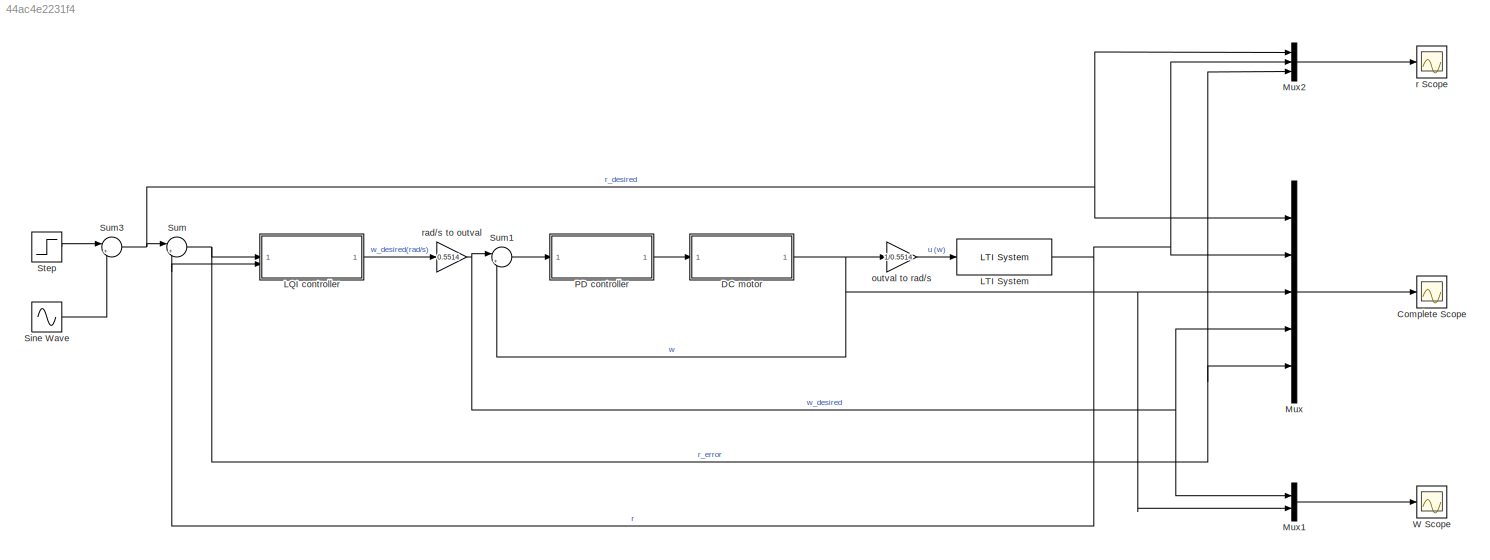
MODEL slx_44ac4e2231f4
KIND model
CONFIG AbsTol = auto
CONFIG EnableMultiTasking = off
CONFIG FixedStep = auto
CONFIG MaxStep = auto
CONFIG MinStep = auto
CONFIG RelTol = 1e-3
CONFIG SampleTimeConstraint = Unconstrained
CONFIG SolverName = VariableStepAuto
CONFIG StartTime = 0.0
CONFIG StopTime = 50
BLOCK [Scope] Complete Scope
  Floating = off
  NumInputPorts = 1
  ScopeSpecificationString = Simulink.scopes.TimeScopeBlockCfg('CurrentConfiguration', extmgr.ConfigurationSet(extmgr.Configuration('Core','General UI',true),extmgr.Configuration('Core','Source UI',true),extmgr.Configuration('Sources','WiredSimulink',true),extmgr.Configuration('Visuals','Time Domain',true,'SerializedDisplays',{struct('MinYLimReal','-1.86026','MaxYLimReal','2.03652','YLabelReal','','MinYLimMag','0.00000','MaxY...<+1606ch>
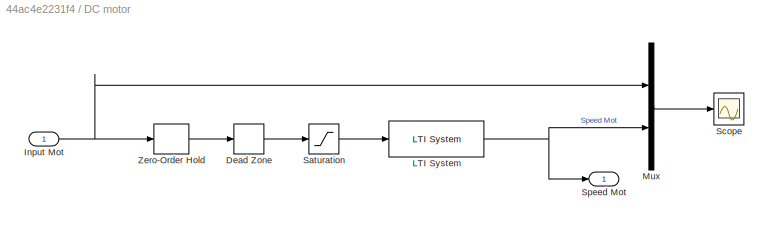
BLOCK [SubSystem] DC motor
BLOCK [DeadZone] DC motor/Dead Zone
  LowerValue = -1.75
  UpperValue = 1.7
BLOCK [Inport] DC motor/Input Mot
BLOCK [Reference] DC motor/LTI System  REF=cstblocks/LTI System
  SourceBlock = cstblocks/LTI System
  SourceType = LTI Block
BLOCK [Mux] DC motor/Mux
  DisplayOption = bar
  Inputs = 2
BLOCK [Saturate] DC motor/Saturation
  LowerLimit = -8.42
  UpperLimit = 8.30
BLOCK [Scope] DC motor/Scope
  Floating = off
  NumInputPorts = 1
  ScopeSpecificationString = Simulink.scopes.TimeScopeBlockCfg('CurrentConfiguration', extmgr.ConfigurationSet(extmgr.Configuration('Core','General UI',true),extmgr.Configuration('Core','Source UI',true),extmgr.Configuration('Sources','WiredSimulink',true,'DataLoggingVariableName','ScopeData1'),extmgr.Configuration('Visuals','Time Domain',true,'SerializedDisplays',{struct('MinYLimReal','-30407.36833','MaxYLimReal','20127.3813...<+1654ch>
BLOCK [Outport] DC motor/Speed Mot
BLOCK [ZeroOrderHold] DC motor/Zero-Order Hold
  SampleTime = 0.01
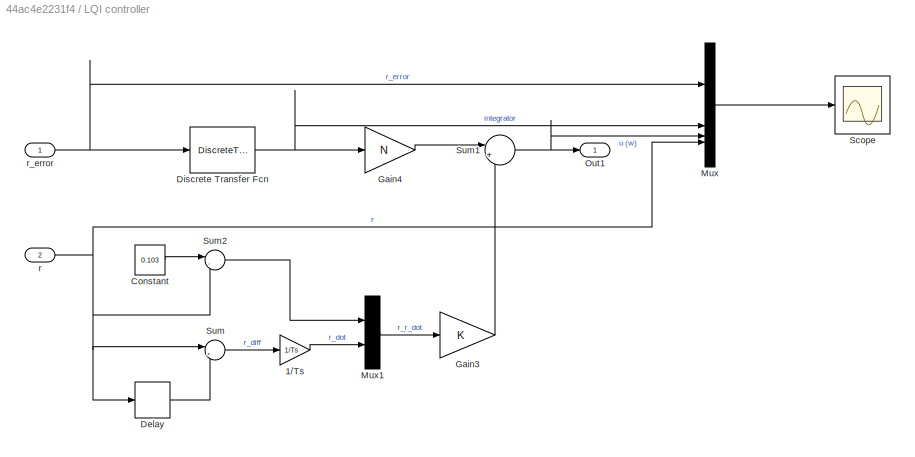
BLOCK [SubSystem] LQI controller
BLOCK [Gain] LQI controller/1//Ts
  Gain = 1/Ts
BLOCK [Constant] LQI controller/Constant
  Value = 0.103
BLOCK [Delay] LQI controller/Delay
  DelayLength = 1
  InputPortMap = u0
  InputProcessing = Columns as channels (frame based)
BLOCK [DiscreteTransferFcn] LQI controller/Discrete Transfer Fcn
  CloseFcn = dspblkCoreblockFVToolHelper(gcbh,'close');
  CopyFcn = dspblkCoreblockFVToolHelper(gcbh,'copy');
  DeleteFcn = dspblkCoreblockFVToolHelper(gcbh,'close');
  Denominator = [1 -1]
  InputPortMap = u0
  LoadFcn = dspblkCoreblockFVToolHelper(gcbh,'load');
  ModelCloseFcn = dspblkCoreblockFVToolHelper(gcbh,'close');
  PostSaveFcn = dspblkCoreblockFVToolHelper(gcbh,'postsave');
  PreSaveFcn = dspblkCoreblockFVToolHelper(gcbh,'presave');
BLOCK [Gain] LQI controller/Gain3
  Gain = K
  Multiplication = Matrix(K*u)
BLOCK [Gain] LQI controller/Gain4
  Gain = N
  Multiplication = Matrix(K*u)
BLOCK [Mux] LQI controller/Mux
  DisplayOption = bar
BLOCK [Mux] LQI controller/Mux1
  DisplayOption = bar
  Inputs = 2
BLOCK [Outport] LQI controller/Out1
BLOCK [Scope] LQI controller/Scope
  Floating = off
  NumInputPorts = 1
  ScopeSpecificationString = Simulink.scopes.TimeScopeBlockCfg('CurrentConfiguration', extmgr.ConfigurationSet(extmgr.Configuration('Core','General UI',true),extmgr.Configuration('Core','Source UI',true),extmgr.Configuration('Sources','WiredSimulink',true,'DataLoggingVariableName','ScopeData2'),extmgr.Configuration('Visuals','Time Domain',true,'SerializedDisplays',{struct('MinYLimReal','-0.32757','MaxYLimReal','0.31137','YLab...<+1665ch>
BLOCK [Sum] LQI controller/Sum
  Inputs = |+-
BLOCK [Sum] LQI controller/Sum1
  Inputs = |++
BLOCK [Sum] LQI controller/Sum2
  Inputs = |-+
BLOCK [Inport] LQI controller/r
  Port = 2
BLOCK [Inport] LQI controller/r_error
BLOCK [Reference] LTI System  REF=cstblocks/LTI System
  SourceBlock = cstblocks/LTI System
  SourceType = LTI Block
BLOCK [Mux] Mux
  DisplayOption = bar
  Inputs = 5
BLOCK [Mux] Mux1
  DisplayOption = bar
  Inputs = 2
BLOCK [Mux] Mux2
  DisplayOption = bar
  Inputs = 3
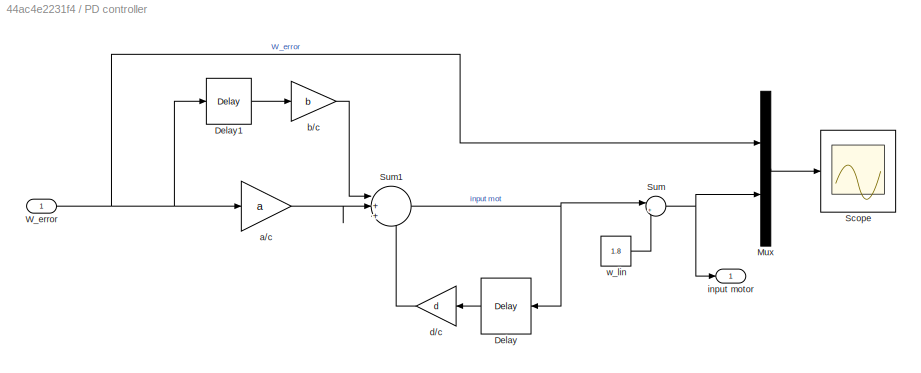
BLOCK [SubSystem] PD controller
BLOCK [Delay] PD controller/Delay
  DelayLength = 1
  InputPortMap = u0
  InputProcessing = Columns as channels (frame based)
  NameLocation = top
BLOCK [Delay] PD controller/Delay1
  DelayLength = 1
  InputPortMap = u0
  InputProcessing = Columns as channels (frame based)
BLOCK [Mux] PD controller/Mux
  DisplayOption = bar
  Inputs = 2
BLOCK [Scope] PD controller/Scope
  Floating = off
  NumInputPorts = 1
  ScopeSpecificationString = Simulink.scopes.TimeScopeBlockCfg('CurrentConfiguration', extmgr.ConfigurationSet(extmgr.Configuration('Core','General UI',true),extmgr.Configuration('Core','Source UI',true),extmgr.Configuration('Sources','WiredSimulink',true,'DataLoggingVariableName','ScopeData1'),extmgr.Configuration('Visuals','Time Domain',true,'SerializedDisplays',{struct('MinYLimReal','-256.6782','MaxYLimReal','296.03219','Y...<+1523ch>
BLOCK [Sum] PD controller/Sum
  Inputs = |++
BLOCK [Sum] PD controller/Sum1
  Inputs = |++-
BLOCK [Inport] PD controller/W_error
BLOCK [Gain] PD controller/a//c
  Gain = a
BLOCK [Gain] PD controller/b//c
  Gain = b
BLOCK [Gain] PD controller/d//c
  Gain = d
  NameLocation = top
BLOCK [Outport] PD controller/input motor
BLOCK [Constant] PD controller/w_lin
  Value = 1.8
BLOCK [Sin] Sine Wave
  Amplitude = 0
  Frequency = 0.5
  SampleTime = 0
BLOCK [Step] Step
  After = 0.13
  Before = 0.1
  SampleTime = 0
  Time = 20
BLOCK [Sum] Sum
  Inputs = |+-
BLOCK [Sum] Sum1
  Inputs = |+-
BLOCK [Sum] Sum3
  Inputs = |++
BLOCK [Scope] W Scope
  Floating = off
  NumInputPorts = 1
  ScopeSpecificationString = Simulink.scopes.TimeScopeBlockCfg('CurrentConfiguration', extmgr.ConfigurationSet(extmgr.Configuration('Core','General UI',true),extmgr.Configuration('Core','Source UI',true),extmgr.Configuration('Sources','WiredSimulink',true,'DataLoggingVariableName','ScopeData1'),extmgr.Configuration('Visuals','Time Domain',true,'SerializedDisplays',{struct('MinYLimReal','-3.95168','MaxYLimReal','1.98958','YLab...<+1534ch>
BLOCK [Gain] outval to rad//s
  Gain = 1/0.5514
BLOCK [Scope] r Scope
  Floating = off
  NumInputPorts = 1
  ScopeSpecificationString = Simulink.scopes.TimeScopeBlockCfg('CurrentConfiguration', extmgr.ConfigurationSet(extmgr.Configuration('Core','General UI',true),extmgr.Configuration('Core','Source UI',true),extmgr.Configuration('Sources','WiredSimulink',true,'DataLoggingVariableName','ScopeData2'),extmgr.Configuration('Visuals','Time Domain',true,'SerializedDisplays',{struct('MinYLimReal','-0.13599','MaxYLimReal','0.23599','YLab...<+1496ch>
BLOCK [Gain] rad//s to outval
  Gain = 0.5514
LINE DC motor/Dead Zone:1 -> DC motor/Saturation:1
NET DC motor/Input Mot:1 -> DC motor/Mux:1, DC motor/Zero-Order Hold:1
NET DC motor/LTI System:1 -> DC motor/Mux:2, DC motor/Speed Mot:1
LINE DC motor/Mux:1 -> DC motor/Scope:1
LINE DC motor/Saturation:1 -> DC motor/LTI System:1
LINE DC motor/Zero-Order Hold:1 -> DC motor/Dead Zone:1
NET DC motor:1 -> Mux1:2, Mux:3, Sum1:2, outval to rad//s:1
LINE LQI controller/1//Ts:1 -> LQI controller/Mux1:2
LINE LQI controller/Constant:1 -> LQI controller/Sum2:1
LINE LQI controller/Delay:1 -> LQI controller/Sum:2
NET LQI controller/Discrete Transfer Fcn:1 -> LQI controller/Gain4:1, LQI controller/Mux:2
LINE LQI controller/Gain3:1 -> LQI controller/Sum1:2
LINE LQI controller/Gain4:1 -> LQI controller/Sum1:1
LINE LQI controller/Mux1:1 -> LQI controller/Gain3:1
LINE LQI controller/Mux:1 -> LQI controller/Scope:1
NET LQI controller/Sum1:1 -> LQI controller/Mux:3, LQI controller/Out1:1
LINE LQI controller/Sum2:1 -> LQI controller/Mux1:1
LINE LQI controller/Sum:1 -> LQI controller/1//Ts:1
NET LQI controller/r:1 -> LQI controller/Delay:1, LQI controller/Mux:4, LQI controller/Sum2:2, LQI controller/Sum:1
NET LQI controller/r_error:1 -> LQI controller/Discrete Transfer Fcn:1, LQI controller/Mux:1
LINE LQI controller:1 -> rad//s to outval:1
NET LTI System:1 -> LQI controller:2, Mux2:2, Mux:2, Sum:2
LINE Mux1:1 -> W Scope:1
LINE Mux2:1 -> r Scope:1
LINE Mux:1 -> Complete Scope:1
LINE PD controller/Delay1:1 -> PD controller/b//c:1
LINE PD controller/Delay:1 -> PD controller/d//c:1
LINE PD controller/Mux:1 -> PD controller/Scope:1
NET PD controller/Sum1:1 -> PD controller/Delay:1, PD controller/Sum:1
NET PD controller/Sum:1 -> PD controller/Mux:2, PD controller/input motor:1
NET PD controller/W_error:1 -> PD controller/Delay1:1, PD controller/Mux:1, PD controller/a//c:1
LINE PD controller/a//c:1 -> PD controller/Sum1:2
LINE PD controller/b//c:1 -> PD controller/Sum1:1
LINE PD controller/d//c:1 -> PD controller/Sum1:3
LINE PD controller/w_lin:1 -> PD controller/Sum:2
LINE PD controller:1 -> DC motor:1
LINE Sine Wave:1 -> Sum3:2
LINE Step:1 -> Sum3:1
LINE Sum1:1 -> PD controller:1
NET Sum3:1 -> Mux2:1, Mux:1, Sum:1
NET Sum:1 -> LQI controller:1, Mux2:3, Mux:5
LINE outval to rad//s:1 -> LTI System:1
NET rad//s to outval:1 -> Mux1:1, Mux:4, Sum1:1
note: NET lines group one-source signal fan-out (src -> all destinations, sorted); 1:1 wires keep LINE
